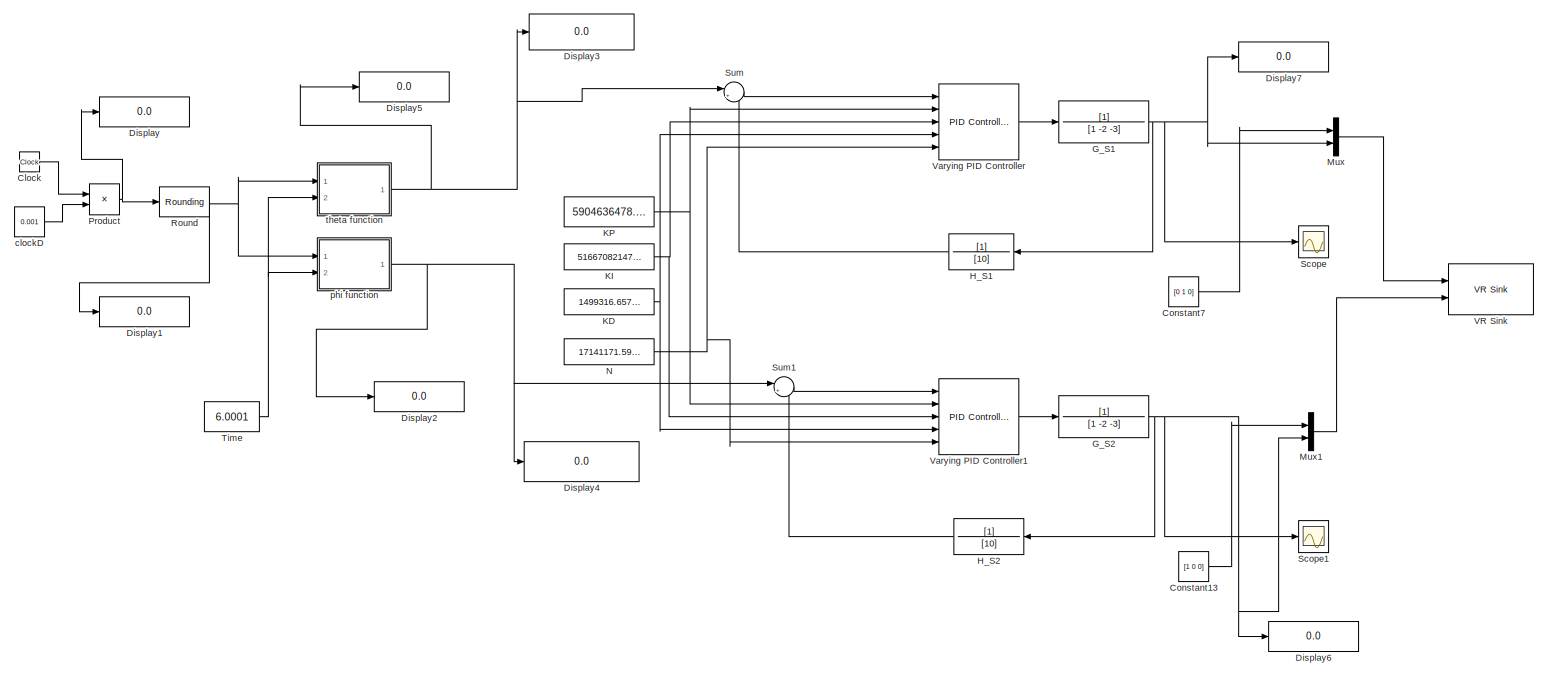
[diagram: root canvas - part 1/1, most of the canvas]
MODEL slx_0c0b122e5617
KIND model
CONFIG AbsTol = auto
CONFIG EnableMultiTasking = off
CONFIG FixedStep = auto
CONFIG MaxStep = auto
CONFIG MinStep = auto
CONFIG RelTol = 1e-3
CONFIG SampleTimeConstraint = Unconstrained
CONFIG Solver = ode14x
CONFIG SolverName = ode14x
CONFIG StartTime = 0.0
CONFIG StopTime = inf
BLOCK [Clock] Clock
BLOCK [Constant] Constant13
  Value = [1 0 0]
BLOCK [Constant] Constant7
  Value = [0 1 0]
BLOCK [Display] Display
  Decimation = 1
  Ports = [1]
BLOCK [Display] Display1
  Decimation = 1
  Ports = [1]
BLOCK [Display] Display2
  Decimation = 1
  Ports = [1]
BLOCK [Display] Display3
  Decimation = 1
  Format = long
  Ports = [1]
BLOCK [Display] Display4
  Decimation = 1
  Format = long
  Ports = [1]
BLOCK [Display] Display5
  Decimation = 1
  Ports = [1]
BLOCK [Display] Display6
  Decimation = 1
  Ports = [1]
BLOCK [Display] Display7
  Decimation = 1
  Ports = [1]
BLOCK [TransferFcn] G_S1
  Denominator = [1 -2 -3]
BLOCK [TransferFcn] G_S2
  Denominator = [1 -2 -3]
BLOCK [TransferFcn] H_S1
  Denominator = [10]
BLOCK [TransferFcn] H_S2
  Denominator = [10]
BLOCK [Constant] KD
  Value = 1499316.6570894
BLOCK [Constant] KI
  Value = 5166708214766.51
BLOCK [Constant] KP
  Value = 5904636478.44973
BLOCK [Mux] Mux
  DisplayOption = bar
  Inputs = 2
  Ports = [2, 1]
BLOCK [Mux] Mux1
  DisplayOption = bar
  Inputs = 2
  Ports = [2, 1]
BLOCK [Constant] N
  Value = 17141171.5925145
BLOCK [Product] Product
  InputSameDT = off
  OutDataTypeStr = Inherit: Inherit via internal rule
  Ports = [2, 1]
  RndMeth = Floor
  SaturateOnIntegerOverflow = off
BLOCK [Rounding] Round
  Operator = round
BLOCK [Scope] Scope
  NumInputPorts = 1
  Ports = [1]
  ScopeSpecificationString = Simulink.scopes.TimeScopeBlockCfg('CurrentConfiguration', extmgr.ConfigurationSet(extmgr.Configuration('Core','General UI',true),extmgr.Configuration('Core','Source UI',true),extmgr.Configuration('Sources','WiredSimulink',true),extmgr.Configuration('Visuals','Time Domain',true,'SerializedDisplays',{struct('MinYLimReal','-31968947259058949385607093936644796811693641113850623590521281257366338642204...<+3854ch>
BLOCK [Scope] Scope1
  NumInputPorts = 1
  Ports = [1]
  ScopeSpecificationString = Simulink.scopes.TimeScopeBlockCfg('CurrentConfiguration', extmgr.ConfigurationSet(extmgr.Configuration('Core','General UI',true),extmgr.Configuration('Core','Source UI',true),extmgr.Configuration('Sources','WiredSimulink',true,'DataLoggingVariableName','ScopeData1'),extmgr.Configuration('Visuals','Time Domain',true,'SerializedDisplays',{struct('MinYLimReal','-0.71992','MaxYLimReal','0.61341','YLab...<+1491ch>
BLOCK [Sum] Sum
  IconShape = round
  InputSameDT = off
  Inputs = |+-
  OutDataTypeStr = Inherit: Inherit via internal rule
  Ports = [2, 1]
  SaturateOnIntegerOverflow = off
BLOCK [Sum] Sum1
  IconShape = round
  InputSameDT = off
  Inputs = |+-
  OutDataTypeStr = Inherit: Inherit via internal rule
  Ports = [2, 1]
  SaturateOnIntegerOverflow = off
BLOCK [Constant] Time
  Value = 6.0001
BLOCK [Reference] VR Sink  REF=vrlib/VR Sink
  InstantiateOnLoad = on
  Ports = [2]
  SourceBlock = vrlib/VR Sink
  SourceProductBaseCode = VR
  SourceProductName = Simulink 3D Animation
  SourceType = Virtual Reality Sink
BLOCK [Reference] Varying PID Controller  REF=simulink/Continuous/PID Controller
  Ports = [5, 1]
  SourceBlock = simulink/Continuous/PID Controller
  SourceProductBaseCode = SL
  SourceProductName = Simulink
  SourceType = PID 1dof
BLOCK [Reference] Varying PID Controller1  REF=simulink/Continuous/PID Controller
  Ports = [5, 1]
  SourceBlock = simulink/Continuous/PID Controller
  SourceProductBaseCode = SL
  SourceProductName = Simulink
  SourceType = PID 1dof
BLOCK [Constant] clockD
  Value = 0.001
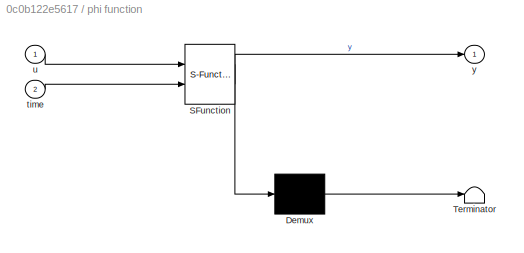
BLOCK [SubSystem] phi function
  ErrorFcn = Stateflow.Translate.translate
  PermitHierarchicalResolution = ExplicitOnly
  Ports = [2, 1]
  RequestExecContextInheritance = off
  SFBlockType = MATLAB Function
  TreatAsAtomicUnit = on
  Variant = off
BLOCK [Demux] phi function/ Demux 
  Outputs = 1
  Ports = [1, 1]
BLOCK [S-Function] phi function/ SFunction 
  EnableBusSupport = on
  FunctionName = sf_sfun
  PortCounts = [2 2]
  Ports = [2, 2]
  SFcnIsStateOwnerBlock = off
  SFunctionDeploymentMode = off
  Tag = Stateflow S-Function telescoperotation 1
BLOCK [Terminator] phi function/ Terminator 
BLOCK [Inport] phi function/time
  IconDisplay = Port number
  Port = 2
BLOCK [Inport] phi function/u
  IconDisplay = Port number
BLOCK [Outport] phi function/y
  IconDisplay = Port number
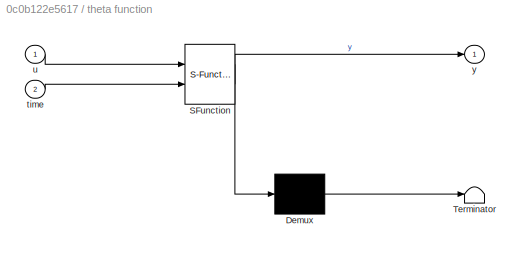
BLOCK [SubSystem] theta function 
  ErrorFcn = Stateflow.Translate.translate
  PermitHierarchicalResolution = ExplicitOnly
  Ports = [2, 1]
  RequestExecContextInheritance = off
  SFBlockType = MATLAB Function
  TreatAsAtomicUnit = on
  Variant = off
BLOCK [Demux] theta function / Demux 
  Outputs = 1
  Ports = [1, 1]
BLOCK [S-Function] theta function / SFunction 
  EnableBusSupport = on
  FunctionName = sf_sfun
  PortCounts = [2 2]
  Ports = [2, 2]
  SFcnIsStateOwnerBlock = off
  SFunctionDeploymentMode = off
  Tag = Stateflow S-Function telescoperotation 2
BLOCK [Terminator] theta function / Terminator 
BLOCK [Inport] theta function /time
  IconDisplay = Port number
  Port = 2
BLOCK [Inport] theta function /u
  IconDisplay = Port number
BLOCK [Outport] theta function /y
  IconDisplay = Port number
LINE Clock:1 -> Product:1
LINE Constant13:1 -> Mux1:1
LINE Constant7:1 -> Mux:1
NET G_S1:1 -> Display7:1, H_S1:1, Mux:2, Scope:1
NET G_S2:1 -> Display6:1, H_S2:1, Mux1:2, Scope1:1
LINE H_S1:1 -> Sum:2
LINE H_S2:1 -> Sum1:2
NET KD:1 -> Varying PID Controller1:4, Varying PID Controller:4
NET KI:1 -> Varying PID Controller1:3, Varying PID Controller:3
NET KP:1 -> Varying PID Controller1:2, Varying PID Controller:2
LINE Mux1:1 -> VR Sink:2
LINE Mux:1 -> VR Sink:1
NET N:1 -> Varying PID Controller1:5, Varying PID Controller:5
NET Product:1 -> Display:1, Round:1
NET Round:1 -> Display1:1, phi function:1, theta function :1
LINE Sum1:1 -> Varying PID Controller1:1
LINE Sum:1 -> Varying PID Controller:1
NET Time:1 -> phi function:2, theta function :2
LINE Varying PID Controller1:1 -> G_S2:1
LINE Varying PID Controller:1 -> G_S1:1
LINE clockD:1 -> Product:2
NET phi function:1 -> Display2:1, Display4:1, Sum1:1
NET theta function :1 -> Display3:1, Display5:1, Sum:1
note: NET lines group one-source signal fan-out (src -> all destinations, sorted); 1:1 wires keep LINE
CHART phi function states=1 transitions=1
  STATE_LABEL 'eML_blk_kernel()'
  STATE_LABEL 'SCRIPT:\nfunction y = fcn(u,time)\nu = u + 1; \narr2 = [ 18 4 24 18 26 31 18 35 35 9 18 18 31 35 18 4 31 35 26 60 60 35 24 60 60 60 24 9 9 18 18 26 18 31 60 24 31 24 26 31 26 31 24 26 9 4 4 31 26 9 26 31 18 26 26 9 9 60 24 26 60 9 18 35 9 26 35 31 26 9 26 60 18 31 18 26 26 31 26 9 60 26 26 31 31 60 31 24 9 9 9 4 31 9 35 18 26 24 26 31 ];  \n%arr2 = [0 -0.244346095279206 0.349065850398866 -0.1047197551...<+1660ch>'
CHART theta function
 states=1 transitions=1
  STATE_LABEL 'eML_blk_kernel()'
  STATE_LABEL 'SCRIPT:\nfunction y = fcn(u, time)\nu = u + 1; \narr1 = [ 260 101 94 99 12 101 319 273 273 278 85 116 134 310 323 273 198 99 85 72 134 260 200 1 6 310 351 50 6 134 329 85 12 101 134 50 94 39 99 226 34 6 245 154 1 6 310 333 34 260 333 67 101 278 200 305 310 101 305 99 323 12 329 323 232 319 278 319 101 72 351 154 260 273 200 278 43 6 156 12 101 34 310 278 278 72 232 134 329 323 43 273 198 273 278 351 ...<+1876ch>'
